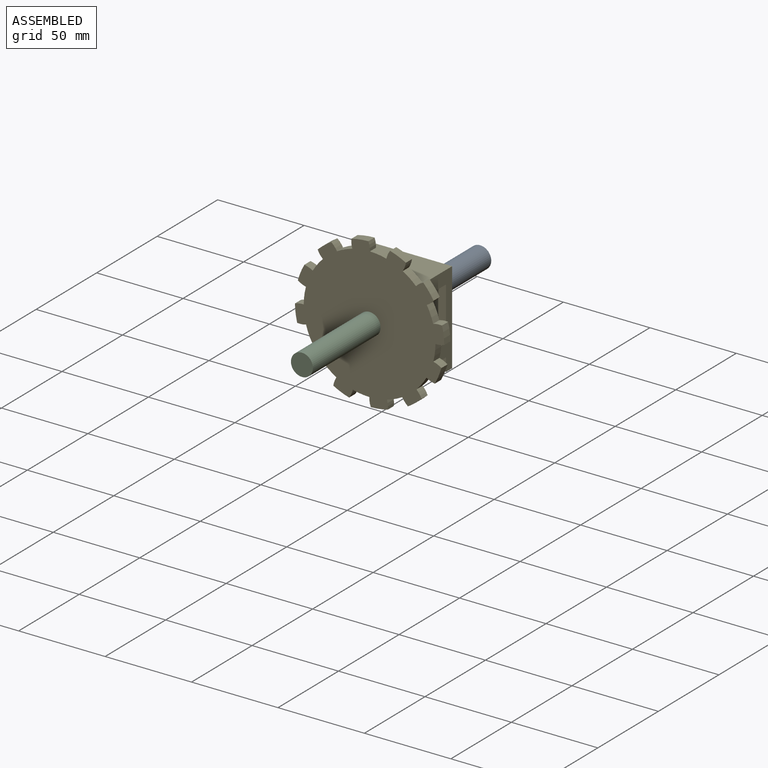
[diagram: assembled view]
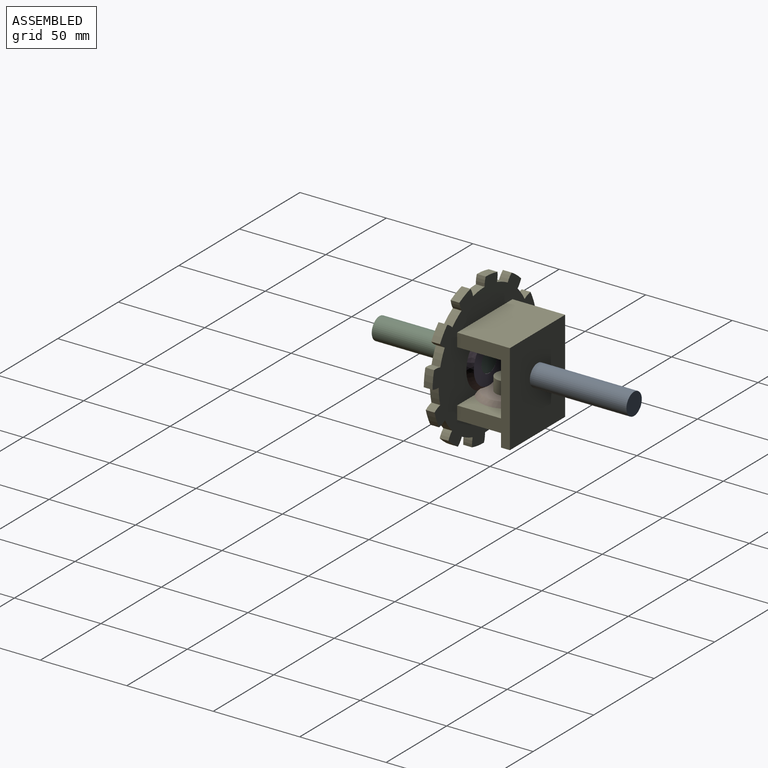
[diagram: assembled view, second angle]
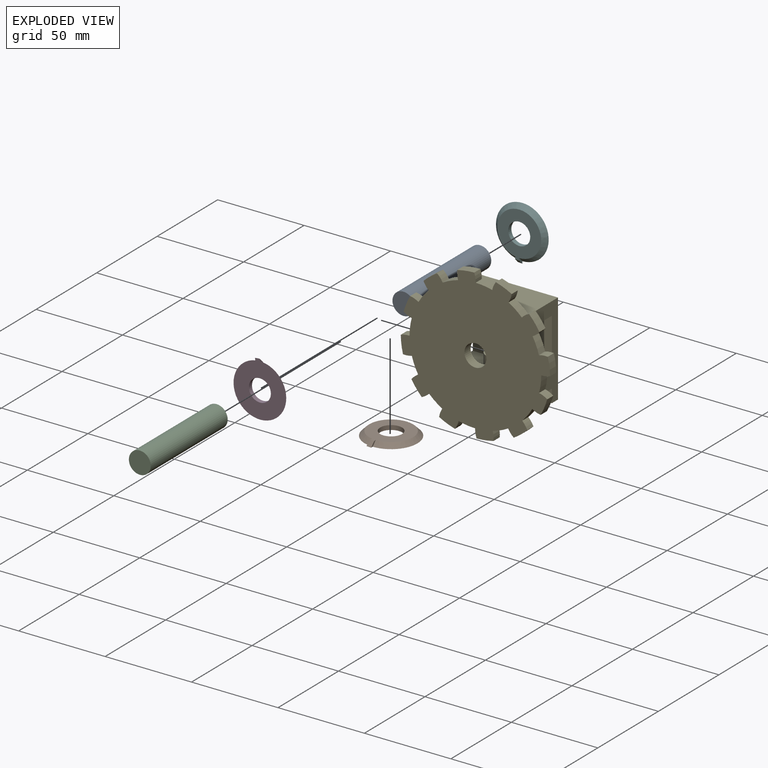
[diagram: exploded view]
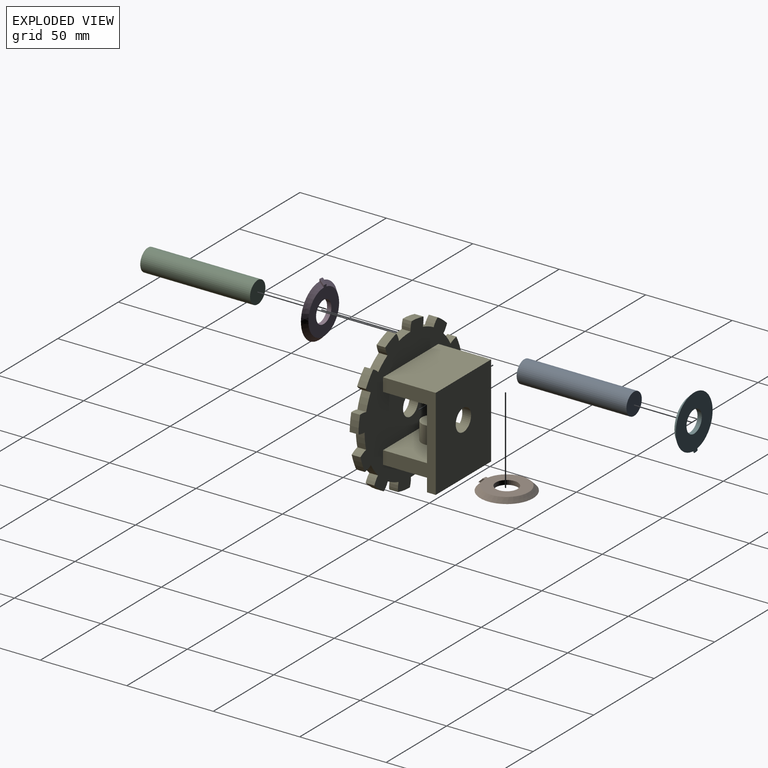
[diagram: exploded view, second angle]
ASSEMBLY  parts=6 mates=5
PART A: 3 faces, bbox 12.7x63.5x12.7 mm
  f0: cylinder r=6.35mm len=63.5mm, axis (0,1,0), area 2533.5mm2, adj f1,f2
  f1: plane 12.7x12.7mm, normal (0,-1,0), area 126.7mm2, adj f0
  f2: plane 12.7x12.7mm, normal (0,1,0), area 126.7mm2, adj f0
PART B: 7 faces, bbox 30.5x2.5x31.8 mm
  f0: cone r=12.7mm half-angle=45deg, axis (0,-1,0), area 306.5mm2, adj f1,f4,f5,f6
  f1: plane 3.75x2.54mm, normal (-0.98,0,-0.17), area 3.2mm2, adj f0,f2,f5,f6
  f2: cone r=13.97mm half-angle=45deg, axis (0,-1,0), area 9.6mm2, adj f1,f4,f5,f6
  f3: cylinder r=6.35mm len=12.7mm, axis (0,-1,0), area 101.3mm2, adj f5,f6
  f4: plane 3.81x2.54mm, normal (1,0,0), area 3.2mm2, adj f0,f2,f5,f6
  f5: plane 26.67x25.4mm, normal (0,1,0), area 383mm2, adj f0,f1,f2,f3,f4
  f6: plane 31.75x30.48mm, normal (0,-1,0), area 606.5mm2, adj f0,f1,f2,f3,f4
PART C: same geometry as A
PART D: same geometry as B
PART E: 64 faces, bbox 86.3x35.6x86.3 mm
  f0: plane 45.72x25.4mm, normal (0,0,-1), area 1161.3mm2, adj f20,f54,f55,f59
  f1: plane 45.72x25.4mm, normal (0,0,-1), area 1161.3mm2, adj f20,f54,f55,f61
  f2: plane 45.72x25.4mm, normal (0,0,1), area 1034.6mm2, adj f20,f54,f55,f59,f62
  f3: cylinder r=38.1mm len=8.9mm, axis (0,1,0), area 49.1mm2, adj f18,f19,f20,f38
  f4: cylinder r=38.1mm len=7.64mm, axis (0,1,0), area 49.1mm2, adj f19,f20,f35,f37
  f5: cylinder r=38.1mm len=9.55mm, axis (0,1,0), area 49.1mm2, adj f19,f20,f32,f34
  f6: cylinder r=38.1mm len=8.9mm, axis (0,1,0), area 49.1mm2, adj f19,f20,f29,f31
  f7: cylinder r=38.1mm len=7.64mm, axis (0,1,0), area 49.1mm2, adj f19,f20,f26,f28
  f8: cylinder r=38.1mm len=9.55mm, axis (0,1,0), area 49.1mm2, adj f19,f20,f23,f25
  f9: cylinder r=38.1mm len=8.9mm, axis (0,1,0), area 49.1mm2, adj f19,f20,f22,f51
  f10: cylinder r=38.1mm len=7.64mm, axis (0,1,0), area 49.1mm2, adj f19,f20,f50,f53
  f11: cylinder r=38.1mm len=9.55mm, axis (0,1,0), area 49.1mm2, adj f19,f20,f47,f49
  f12: cylinder r=38.1mm len=8.9mm, axis (0,1,0), area 49.1mm2, adj f19,f20,f44,f46
  f13: cylinder r=38.1mm len=7.64mm, axis (0,1,0), area 49.1mm2, adj f19,f20,f40,f43
  f14: cylinder r=38.1mm len=9.55mm, axis (0,1,0), area 49.1mm2, adj f15,f19,f20,f41
  f15: cylinder r=12.7mm len=5.08mm, axis (0,1,0), area 26.3mm2, adj f14,f16,f19,f20
  f16: cylinder r=43.18mm len=9.82mm, axis (0,1,0), area 50.4mm2, adj f15,f18,f19,f20
  f17: cylinder r=6.35mm len=12.7mm, axis (0,1,0), area 202.7mm2, adj f19,f20
  f18: cylinder r=12.7mm len=5.12mm, axis (0,1,0), area 26.3mm2, adj f3,f16,f19,f20
  f19: plane 86.35x86.35mm, normal (0,-1,0), area 5071.5mm2, adj f3,f4,f5,f6,f7,f8,f9,f10
  f20: plane 86.35x86.35mm, normal (0,1,0), area 4374.7mm2, adj f0,f1,f2,f3,f4,f5,f6,f7
  f21: cylinder r=43.18mm len=9.82mm, axis (0,1,0), area 50.4mm2, adj f19,f20,f22,f23
  f22: cylinder r=12.7mm len=5.12mm, axis (0,1,0), area 26.3mm2, adj f9,f19,f20,f21
  f23: cylinder r=12.7mm len=5.08mm, axis (0,1,0), area 26.3mm2, adj f8,f19,f20,f21
  f24: cylinder r=43.18mm len=9.15mm, axis (0,1,0), area 50.4mm2, adj f19,f20,f25,f26
  f25: cylinder r=12.7mm len=5.08mm, axis (0,1,0), area 26.3mm2, adj f8,f19,f20,f24
  f26: cylinder r=12.7mm len=5.08mm, axis (0,1,0), area 26.3mm2, adj f7,f19,f20,f24
  f27: cylinder r=43.18mm len=7.86mm, axis (0,1,0), area 50.4mm2, adj f19,f20,f28,f29
  f28: cylinder r=12.7mm len=5.08mm, axis (0,1,0), area 26.3mm2, adj f7,f19,f20,f27
  f29: cylinder r=12.7mm len=5.08mm, axis (0,1,0), area 26.3mm2, adj f6,f19,f20,f27
  f30: cylinder r=43.18mm len=9.82mm, axis (0,1,0), area 50.4mm2, adj f19,f20,f31,f32
  f31: cylinder r=12.7mm len=5.12mm, axis (0,1,0), area 26.3mm2, adj f6,f19,f20,f30
  f32: cylinder r=12.7mm len=5.08mm, axis (0,1,0), area 26.3mm2, adj f5,f19,f20,f30
  f33: cylinder r=43.18mm len=9.15mm, axis (0,1,0), area 50.4mm2, adj f19,f20,f34,f35
  f34: cylinder r=12.7mm len=5.08mm, axis (0,1,0), area 26.3mm2, adj f5,f19,f20,f33
  f35: cylinder r=12.7mm len=5.08mm, axis (0,1,0), area 26.3mm2, adj f4,f19,f20,f33
  f36: cylinder r=43.18mm len=7.86mm, axis (0,1,0), area 50.4mm2, adj f19,f20,f37,f38
  f37: cylinder r=12.7mm len=5.08mm, axis (0,1,0), area 26.3mm2, adj f4,f19,f20,f36
  f38: cylinder r=12.7mm len=5.08mm, axis (0,1,0), area 26.3mm2, adj f3,f19,f20,f36
  f39: cylinder r=43.18mm len=9.15mm, axis (0,1,0), area 50.4mm2, adj f19,f20,f40,f41
  f40: cylinder r=12.7mm len=5.08mm, axis (0,1,0), area 26.3mm2, adj f13,f19,f20,f39
  f41: cylinder r=12.7mm len=5.08mm, axis (0,1,0), area 26.3mm2, adj f14,f19,f20,f39
  f42: cylinder r=43.18mm len=7.86mm, axis (0,1,0), area 50.4mm2, adj f19,f20,f43,f44
  f43: cylinder r=12.7mm len=5.08mm, axis (0,1,0), area 26.3mm2, adj f13,f19,f20,f42
  f44: cylinder r=12.7mm len=5.08mm, axis (0,1,0), area 26.3mm2, adj f12,f19,f20,f42
  f45: cylinder r=43.18mm len=9.82mm, axis (0,1,0), area 50.4mm2, adj f19,f20,f46,f47
  f46: cylinder r=12.7mm len=5.12mm, axis (0,1,0), area 26.3mm2, adj f12,f19,f20,f45
  f47: cylinder r=12.7mm len=5.08mm, axis (0,1,0), area 26.3mm2, adj f11,f19,f20,f45
  f48: cylinder r=43.18mm len=9.15mm, axis (0,1,0), area 50.4mm2, adj f19,f20,f49,f50
  f49: cylinder r=12.7mm len=5.08mm, axis (0,1,0), area 26.3mm2, adj f11,f19,f20,f48
  f50: cylinder r=12.7mm len=5.08mm, axis (0,1,0), area 26.3mm2, adj f10,f19,f20,f48
  f51: cylinder r=12.7mm len=5.08mm, axis (0,1,0), area 26.3mm2, adj f9,f19,f20,f52
  f52: cylinder r=43.18mm len=7.86mm, axis (0,1,0), area 50.4mm2, adj f19,f20,f51,f53
  f53: cylinder r=12.7mm len=5.08mm, axis (0,1,0), area 26.3mm2, adj f10,f19,f20,f52
  f54: plane 53.34x30.48mm, normal (-1,0,0), area 658.1mm2, adj f0,f1,f2,f20,f56,f57,f59,f60
  f55: plane 53.34x30.48mm, normal (1,0,0), area 658.1mm2, adj f0,f1,f2,f20,f56,f57,f59,f60
  f56: plane 45.72x30.48mm, normal (0,0,1), area 1393.5mm2, adj f20,f54,f55,f57
  f57: plane 53.34x45.72mm, normal (0,1,0), area 2312mm2, adj f54,f55,f56,f58,f60
  f58: cylinder r=6.35mm len=12.7mm, axis (0,1,0), area 202.7mm2, adj f57,f59
  f59: plane 45.72x30.48mm, normal (0,-1,0), area 1266.9mm2, adj f0,f2,f54,f55,f58
  f60: plane 45.72x5.08mm, normal (0,0,-1), area 232.3mm2, adj f54,f55,f57,f61
  f61: plane 45.72x7.62mm, normal (0,-1,0), area 348.4mm2, adj f1,f54,f55,f60
  f62: cylinder r=6.35mm len=12.7mm, axis (0,0,-1), area 405.4mm2, adj f2,f63
  f63: plane 12.7x12.7mm, normal (0,0,1), area 126.7mm2, adj f62
PART F: same geometry as B
PLACE A rot(axis=(1,0,0),180deg) t=(22.54,-6.71,-113.21)mm
PLACE B rot(axis=(1,0,0),90deg) t=(22.54,-24.49,-128.45)mm
PLACE C t=(22.53,-42.27,-113.11)mm
PLACE D t=(22.54,-37.19,-113.21)mm
PLACE E t=(22.54,-37.19,-113.21)mm
PLACE F rot(axis=(1,0,0),180deg) t=(22.54,-11.79,-113.21)mm
MATE fastened D.f5 <-> C.f0  axis (0,1,0) through (22.53,-34.65,-113.11)mm
MATE fastened F.f0 <-> A.f0  axis (0,-1,0) through (22.54,-14.33,-113.21)mm
MATE revolute D.f0 <-> E.f3  axis (0,-1,0) through (22.54,-37.19,-113.21)mm
MATE revolute F.f0 <-> E.f3  axis (0,1,0) through (22.54,-11.79,-113.21)mm
MATE revolute B.f0 <-> E.f62  axis (0,0,-1) through (22.54,-24.49,-128.45)mm
